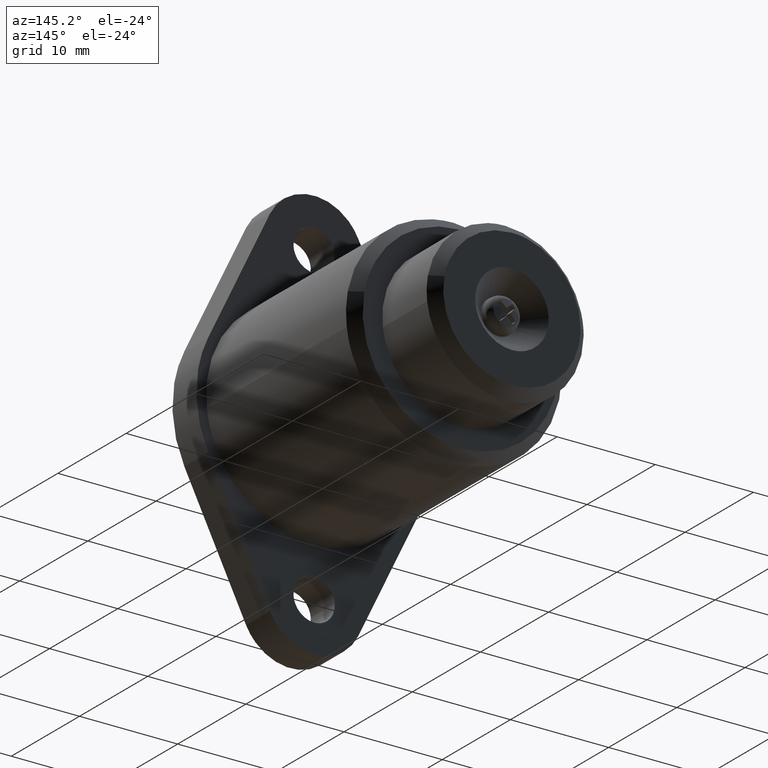
[diagram: clean part render]
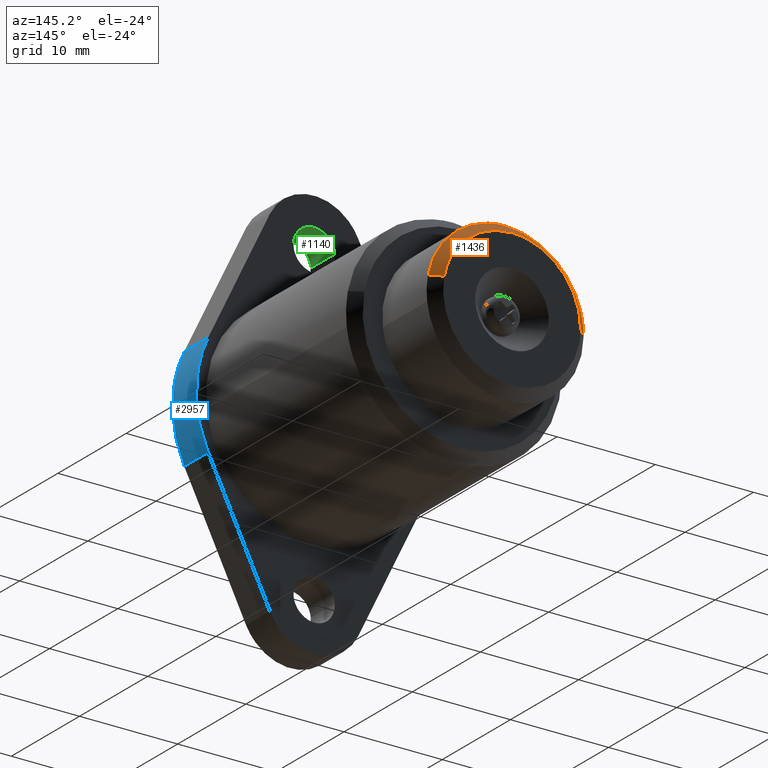
[diagram: same view with three faces highlighted in distinct colors, each labeled with its STEP entity id]
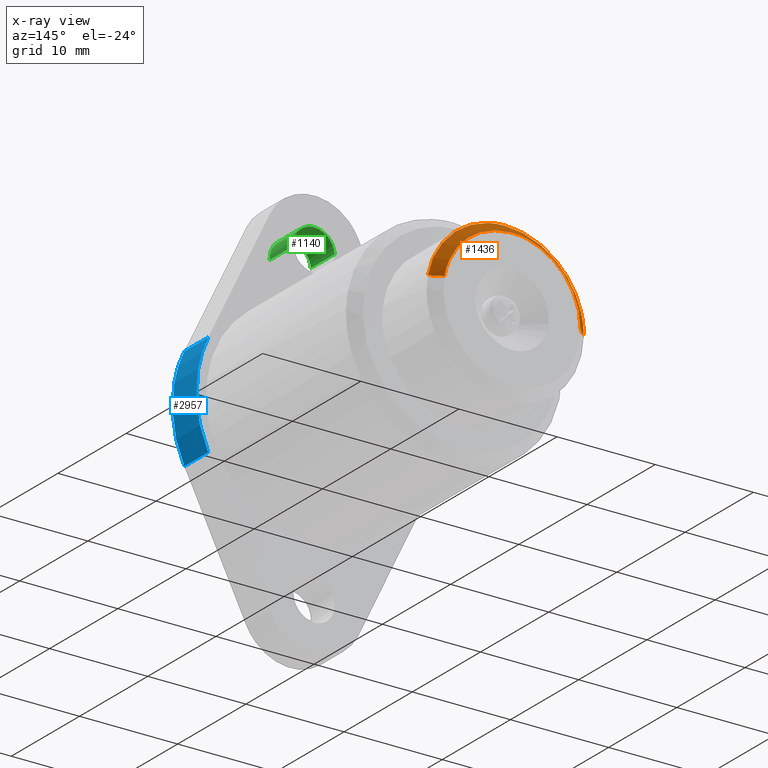
[diagram: x-ray of the same camera — body ghosted, the three highlighted faces saturated]
A machine part, auxiliary view with three faces highlighted in distinct colors.
The next image is the same camera in x-ray (body ghosted, the three faces saturated) — at least one of them is partly hidden behind the body in this view.
Their STEP definitions:

[orange] entity #1436 — the highlighted face is a freeform B-spline surface patch.
#1323=CARTESIAN_POINT('',(6.857033857603708,29.025000000000006,1.277297786195716));
#1324=CARTESIAN_POINT('',(5.786245243018901,29.024999999999999,7.025772026479550));
#1325=CARTESIAN_POINT('',(-0.060885726903348,29.024999999999999,6.974744887549790));
#1326=CARTESIAN_POINT('',(-7.035620140275936,29.025000000000006,6.913877302448632));
#1327=CARTESIAN_POINT('',(-6.974752555174778,29.024999999999999,-0.060857110923956));
#1328=CARTESIAN_POINT('',(7.889892675793798,27.974374999999998,1.469692048875209));
#1329=CARTESIAN_POINT('',(6.657814127417138,27.974374999999991,8.084043099008255));
#1330=CARTESIAN_POINT('',(-0.070054043261327,27.974374999999998,8.025329882969091));
#1331=CARTESIAN_POINT('',(-8.095373452053217,27.974375000000006,7.955293981509954));
#1332=CARTESIAN_POINT('',(-8.025337550594079,27.974374999999998,-0.070025427281935));
#1340=(BOUNDED_SURFACE()B_SPLINE_SURFACE(2,1,((#1323,#1328),(#1324,#1329),(#1325,#1330),(#1326,#1331),(#1327,#1332)),.UNSPECIFIED.,.F.,.F.,.U.)B_SPLINE_SURFACE_WITH_KNOTS((3,2,3),(2,2),(0.0,11.701615979752409,24.998906865834691),(0.0,1.0),.UNSPECIFIED.)GEOMETRIC_REPRESENTATION_ITEM()RATIONAL_B_SPLINE_SURFACE(((0.938140952186599,0.938140952186599),(0.742253967444162,0.742253967444162),(1.0,1.0),(0.707106781186548,0.707106781186548),(1.0,1.0)))REPRESENTATION_ITEM('')SURFACE());
#1341=CARTESIAN_POINT('',(7.864700997291186,27.999999999981160,1.464999506040496));
#1342=VERTEX_POINT('',#1341);
#1343=CARTESIAN_POINT('',(-0.000018141802190,28.0,8.000010474177202));
#1344=VERTEX_POINT('',#1343);
#1345=CARTESIAN_POINT('',(7.864700997291186,27.999999999981160,1.464999506040496));
#1346=CARTESIAN_POINT('',(6.647401406129641,28.000000000000004,8.000010474177202));
#1347=CARTESIAN_POINT('',(-0.000018141802190,28.0,8.000010474177202));
#1355=(BOUNDED_CURVE()B_SPLINE_CURVE(2,(#1345,#1346,#1347),.UNSPECIFIED.,.F.,.U.)B_SPLINE_CURVE_WITH_KNOTS((3,3),(0.281445263719690,0.500000000000000),.UNSPECIFIED.)CURVE()GEOMETRIC_REPRESENTATION_ITEM()RATIONAL_B_SPLINE_CURVE((0.935586817225390,0.743947199215739,1.0))REPRESENTATION_ITEM(''));
#1356=EDGE_CURVE('',#1342,#1344,#1355,.T.);
#1357=ORIENTED_EDGE('',*,*,#1356,.F.);
#1358=CARTESIAN_POINT('',(6.881611104913361,28.999999999999901,1.281875876920605));
#1359=VERTEX_POINT('',#1358);
#1360=CARTESIAN_POINT('',(6.881611104913361,28.999999999999901,1.281875876920605));
#1361=CARTESIAN_POINT('',(7.864700997291186,27.999999999981160,1.464999506040496));
#1362=QUASI_UNIFORM_CURVE('',1,(#1360,#1361),.UNSPECIFIED.,.F.,.U.);
#1363=EDGE_CURVE('',#1359,#1342,#1362,.T.);
#1364=ORIENTED_EDGE('',*,*,#1363,.F.);
#1365=CARTESIAN_POINT('',(-0.000018141802190,29.0,7.000010474177202));
#1366=VERTEX_POINT('',#1365);
#1367=CARTESIAN_POINT('',(-0.000018141802190,29.0,7.000010474177202));
#1368=CARTESIAN_POINT('',(5.816473962868499,28.999999999999996,7.000010474177201));
#1369=CARTESIAN_POINT('',(6.881611104913361,28.999999999999901,1.281875876920605));
#1377=(BOUNDED_CURVE()B_SPLINE_CURVE(2,(#1367,#1368,#1369),.UNSPECIFIED.,.F.,.U.)B_SPLINE_CURVE_WITH_KNOTS((3,3),(0.500000000000000,0.718554736286749),.UNSPECIFIED.)CURVE()GEOMETRIC_REPRESENTATION_ITEM()RATIONAL_B_SPLINE_CURVE((1.0,0.743947199208195,0.935586817236681))REPRESENTATION_ITEM(''));
#1378=EDGE_CURVE('',#1366,#1359,#1377,.T.);
#1379=ORIENTED_EDGE('',*,*,#1378,.F.);
#1380=CARTESIAN_POINT('',(-6.999751603255109,28.999999999996021,-0.061075274340515));
#1381=VERTEX_POINT('',#1380);
#1382=CARTESIAN_POINT('',(-6.999751603255109,28.999999999996025,-0.061075274340515));
#1383=CARTESIAN_POINT('',(-7.000018141802192,28.999999999999996,-0.030532981596775));
#1384=CARTESIAN_POINT('',(-7.000018141802191,29.0,0.000010474177202));
#1385=CARTESIAN_POINT('',(-7.000018141802192,29.000000000000007,7.000010474177201));
#1386=CARTESIAN_POINT('',(-0.000018141802190,29.0,7.000010474177202));
#1394=(BOUNDED_CURVE()B_SPLINE_CURVE(2,(#1382,#1383,#1384,#1385,#1386),.UNSPECIFIED.,.F.,.U.)B_SPLINE_CURVE_WITH_KNOTS((3,2,3),(0.248460105663550,0.250000000000000,0.500000000000000),.UNSPECIFIED.)CURVE()GEOMETRIC_REPRESENTATION_ITEM()RATIONAL_B_SPLINE_CURVE((0.996414028097020,0.998195901564658,1.0,0.707106781186547,1.0))REPRESENTATION_ITEM(''));
#1395=EDGE_CURVE('',#1381,#1366,#1394,.T.);
#1396=ORIENTED_EDGE('',*,*,#1395,.F.);
#1397=CARTESIAN_POINT('',(-7.999713526325029,27.999999999989878,-0.069801809883882));
#1398=VERTEX_POINT('',#1397);
#1399=CARTESIAN_POINT('',(-6.999751603255109,28.999999999996021,-0.061075274340515));
#1400=CARTESIAN_POINT('',(-7.999713526325029,27.999999999989878,-0.069801809883882));
#1401=QUASI_UNIFORM_CURVE('',1,(#1399,#1400),.UNSPECIFIED.,.F.,.U.);
#1402=EDGE_CURVE('',#1381,#1398,#1401,.T.);
#1403=ORIENTED_EDGE('',*,*,#1402,.T.);
#1404=CARTESIAN_POINT('',(-7.985096529174710,28.0,0.488398790495545));
#1405=VERTEX_POINT('',#1404);
#1406=CARTESIAN_POINT('',(-7.985096529174710,28.0,0.488398790495545));
#1407=CARTESIAN_POINT('',(-8.000018141802190,27.999999999999996,0.244432580605510));
#1408=CARTESIAN_POINT('',(-8.000018141802190,28.0,0.000010474177202));
#1409=CARTESIAN_POINT('',(-8.000018141802190,27.999999999999996,-0.034896332462424));
#1410=CARTESIAN_POINT('',(-7.999713526325029,27.999999999989878,-0.069801809883882));
#1418=(BOUNDED_CURVE()B_SPLINE_CURVE(2,(#1406,#1407,#1408,#1409,#1410),.UNSPECIFIED.,.F.,.U.)B_SPLINE_CURVE_WITH_KNOTS((3,2,3),(0.739332962240262,0.750000000000000,0.751539894338246),.UNSPECIFIED.)CURVE()GEOMETRIC_REPRESENTATION_ITEM()RATIONAL_B_SPLINE_CURVE((0.976072041669544,0.987502787901383,1.0,0.998195901562554,0.996414028092863))REPRESENTATION_ITEM(''));
#1419=EDGE_CURVE('',#1405,#1398,#1418,.T.);
#1420=ORIENTED_EDGE('',*,*,#1419,.F.);
#1421=CARTESIAN_POINT('',(-0.000018141802190,28.0,8.000010474177202));
#1422=CARTESIAN_POINT('',(-7.525666676973182,27.999999999999996,8.000010474177202));
#1423=CARTESIAN_POINT('',(-7.985096529174710,28.0,0.488398790495545));
#1431=(BOUNDED_CURVE()B_SPLINE_CURVE(2,(#1421,#1422,#1423),.UNSPECIFIED.,.F.,.U.)B_SPLINE_CURVE_WITH_KNOTS((3,3),(0.500000000000000,0.739332962240262),.UNSPECIFIED.)CURVE()GEOMETRIC_REPRESENTATION_ITEM()RATIONAL_B_SPLINE_CURVE((1.0,0.719603993285165,0.976072041669544))REPRESENTATION_ITEM(''));
#1432=EDGE_CURVE('',#1344,#1405,#1431,.T.);
#1433=ORIENTED_EDGE('',*,*,#1432,.F.);
#1434=EDGE_LOOP('',(#1357,#1364,#1379,#1396,#1403,#1420,#1433));
#1435=FACE_OUTER_BOUND('',#1434,.T.);
#1436=ADVANCED_FACE('',(#1435),#1340,.T.);

[blue] entity #2957 — the highlighted face is a freeform B-spline surface patch.
#2800=CARTESIAN_POINT('',(10.787798958201421,0.0,5.255806668611340));
#2801=VERTEX_POINT('',#2800);
#2809=CARTESIAN_POINT('',(10.787798958201421,0.0,-5.255785720256941));
#2810=VERTEX_POINT('',#2809);
#2811=CARTESIAN_POINT('',(10.787798958201421,0.0,-5.255785720256941));
#2812=CARTESIAN_POINT('',(13.348413384226454,0.0,0.000010474177197));
#2813=CARTESIAN_POINT('',(10.787798958201421,0.0,5.255806668611339));
#2821=(BOUNDED_CURVE()B_SPLINE_CURVE(2,(#2811,#2812,#2813),.UNSPECIFIED.,.F.,.U.)CURVE()GEOMETRIC_REPRESENTATION_ITEM()QUASI_UNIFORM_CURVE()RATIONAL_B_SPLINE_CURVE((1.0,0.898983246516785,1.0))REPRESENTATION_ITEM(''));
#2822=EDGE_CURVE('',#2810,#2801,#2821,.T.);
#2913=CARTESIAN_POINT('',(10.548904755239604,-3.587499999999951,-5.720182570194914));
#2914=CARTESIAN_POINT('',(10.548904755239604,0.089687499999999,-5.720182570194914));
#2915=CARTESIAN_POINT('',(13.650739666797300,-3.587499999999949,0.000072112589288));
#2916=CARTESIAN_POINT('',(13.650739666797300,0.089687499999999,0.000072112589288));
#2917=CARTESIAN_POINT('',(10.548853097005603,-3.587499999999950,5.720298783152140));
#2918=CARTESIAN_POINT('',(10.548853097005603,0.089687499999999,5.720298783152140));
#2926=(BOUNDED_SURFACE()B_SPLINE_SURFACE(1,2,((#2913,#2915,#2917),(#2914,#2916,#2918)),.UNSPECIFIED.,.F.,.F.,.U.)B_SPLINE_SURFACE_WITH_KNOTS((2,2),(3,3),(0.0,3.677187499999949),(0.0,12.176727389553861),.UNSPECIFIED.)GEOMETRIC_REPRESENTATION_ITEM()RATIONAL_B_SPLINE_SURFACE(((0.999972124135799,0.878953462548062,0.999755370377348),(0.999972124135799,0.878953462548062,0.999755370377348)))REPRESENTATION_ITEM('')SURFACE());
#2927=ORIENTED_EDGE('',*,*,#2822,.T.);
#2928=CARTESIAN_POINT('',(10.787798958201421,-3.499999999999950,5.255806668611340));
#2929=VERTEX_POINT('',#2928);
#2930=CARTESIAN_POINT('',(10.787798958201421,-3.499999999999950,5.255806668611340));
#2931=CARTESIAN_POINT('',(10.787798958201421,0.0,5.255806668611340));
#2932=QUASI_UNIFORM_CURVE('',1,(#2930,#2931),.UNSPECIFIED.,.F.,.U.);
#2933=EDGE_CURVE('',#2929,#2801,#2932,.T.);
#2934=ORIENTED_EDGE('',*,*,#2933,.F.);
#2935=CARTESIAN_POINT('',(10.787798958201421,-3.499999999999950,-5.255785720256941));
#2936=VERTEX_POINT('',#2935);
#2937=CARTESIAN_POINT('',(10.787798958201421,-3.499999999999950,-5.255785720256941));
#2938=CARTESIAN_POINT('',(13.348413384226454,-3.499999999999951,0.000010474177197));
#2939=CARTESIAN_POINT('',(10.787798958201421,-3.499999999999950,5.255806668611339));
#2947=(BOUNDED_CURVE()B_SPLINE_CURVE(2,(#2937,#2938,#2939),.UNSPECIFIED.,.F.,.U.)CURVE()GEOMETRIC_REPRESENTATION_ITEM()QUASI_UNIFORM_CURVE()RATIONAL_B_SPLINE_CURVE((1.0,0.898983246516785,1.0))REPRESENTATION_ITEM(''));
#2948=EDGE_CURVE('',#2936,#2929,#2947,.T.);
#2949=ORIENTED_EDGE('',*,*,#2948,.F.);
#2950=CARTESIAN_POINT('',(10.787798958201421,-3.499999999999950,-5.255785720256941));
#2951=CARTESIAN_POINT('',(10.787798958201421,0.0,-5.255785720256941));
#2952=QUASI_UNIFORM_CURVE('',1,(#2950,#2951),.UNSPECIFIED.,.F.,.U.);
#2953=EDGE_CURVE('',#2936,#2810,#2952,.T.);
#2954=ORIENTED_EDGE('',*,*,#2953,.T.);
#2955=EDGE_LOOP('',(#2927,#2934,#2949,#2954));
#2956=FACE_OUTER_BOUND('',#2955,.T.);
#2957=ADVANCED_FACE('',(#2956),#2926,.T.);

[green] entity #1140 — the highlighted face is a freeform B-spline surface patch.
#979=CARTESIAN_POINT('',(2.093526400831510,1.942890E-016,15.835246373046340));
#980=VERTEX_POINT('',#979);
#994=CARTESIAN_POINT('',(-2.093526400831510,1.942890E-016,16.164774575308059));
#995=VERTEX_POINT('',#994);
#1011=CARTESIAN_POINT('',(-2.093526400831511,-3.499999999999950,16.164774575308059));
#1012=VERTEX_POINT('',#1011);
#1013=CARTESIAN_POINT('',(-2.093526400831511,-3.499999999999950,16.164774575308059));
#1014=CARTESIAN_POINT('',(-2.093526400831510,1.942890E-016,16.164774575308059));
#1015=QUASI_UNIFORM_CURVE('',1,(#1013,#1014),.UNSPECIFIED.,.F.,.U.);
#1016=EDGE_CURVE('',#1012,#995,#1015,.T.);
#1035=CARTESIAN_POINT('',(2.093526400831510,-3.499999999999950,15.835246373046340));
#1036=VERTEX_POINT('',#1035);
#1050=CARTESIAN_POINT('',(2.093526400831510,-3.499999999999950,15.835246373046340));
#1051=CARTESIAN_POINT('',(2.093526400831510,1.942890E-016,15.835246373046340));
#1052=QUASI_UNIFORM_CURVE('',1,(#1050,#1051),.UNSPECIFIED.,.F.,.U.);
#1053=EDGE_CURVE('',#1036,#980,#1052,.T.);
#1058=CARTESIAN_POINT('',(-2.093526400839568,-3.587499999999950,16.164774575205669));
#1059=CARTESIAN_POINT('',(-1.928762299811092,-3.587499999999950,18.258300976045241));
#1060=CARTESIAN_POINT('',(0.164764101028476,-3.587499999999950,18.093536875016770));
#1061=CARTESIAN_POINT('',(2.258290501868045,-3.587499999999950,17.928772773988292));
#1062=CARTESIAN_POINT('',(2.093526400839568,-3.587499999999950,15.835246373148721));
#1063=CARTESIAN_POINT('',(-2.093526400839568,0.089687499999999,16.164774575205669));
#1064=CARTESIAN_POINT('',(-1.928762299811092,0.089687499999999,18.258300976045241));
#1065=CARTESIAN_POINT('',(0.164764101028476,0.089687499999999,18.093536875016770));
#1066=CARTESIAN_POINT('',(2.258290501868045,0.089687499999999,17.928772773988292));
#1067=CARTESIAN_POINT('',(2.093526400839568,0.089687499999999,15.835246373148721));
#1075=(BOUNDED_SURFACE()B_SPLINE_SURFACE(2,1,((#1058,#1063),(#1059,#1064),(#1060,#1065),(#1061,#1066),(#1062,#1067)),.UNSPECIFIED.,.F.,.F.,.U.)B_SPLINE_SURFACE_WITH_KNOTS((3,2,3),(2,2),(0.0,3.479393923933999,6.958787847867998),(0.0,3.677187499999949),.UNSPECIFIED.)GEOMETRIC_REPRESENTATION_ITEM()RATIONAL_B_SPLINE_SURFACE(((1.0,1.0),(0.707106781186548,0.707106781186548),(1.0,1.0),(0.707106781186548,0.707106781186548),(1.0,1.0)))REPRESENTATION_ITEM('')SURFACE());
#1076=CARTESIAN_POINT('',(0.0,0.0,18.100010474177200));
#1077=VERTEX_POINT('',#1076);
#1078=CARTESIAN_POINT('',(2.093526400831511,1.942890E-016,15.835246373046337));
#1079=CARTESIAN_POINT('',(2.100000000000000,0.0,15.917501249358232));
#1080=CARTESIAN_POINT('',(2.100000000000000,0.0,16.000010474177198));
#1081=CARTESIAN_POINT('',(2.100000000000000,0.0,18.100010474177203));
#1082=CARTESIAN_POINT('',(0.0,0.0,18.100010474177200));
#1090=(BOUNDED_CURVE()B_SPLINE_CURVE(2,(#1078,#1079,#1080,#1081,#1082),.UNSPECIFIED.,.F.,.U.)B_SPLINE_CURVE_WITH_KNOTS((3,2,3),(0.236331300616000,0.250000000000000,0.500000000000000),.UNSPECIFIED.)CURVE()GEOMETRIC_REPRESENTATION_ITEM()RATIONAL_B_SPLINE_CURVE((0.969723356136824,0.983986122561707,1.0,0.707106781186548,1.0))REPRESENTATION_ITEM(''));
#1091=EDGE_CURVE('',#980,#1077,#1090,.T.);
#1092=ORIENTED_EDGE('',*,*,#1091,.F.);
#1093=ORIENTED_EDGE('',*,*,#1053,.F.);
#1094=CARTESIAN_POINT('',(0.0,-3.499999999999950,18.100010474177200));
#1095=VERTEX_POINT('',#1094);
#1096=CARTESIAN_POINT('',(2.093526400831511,-3.499999999999949,15.835246373046337));
#1097=CARTESIAN_POINT('',(2.100000000000000,-3.499999999999951,15.917501249358232));
#1098=CARTESIAN_POINT('',(2.100000000000000,-3.499999999999950,16.000010474177198));
#1099=CARTESIAN_POINT('',(2.100000000000000,-3.499999999999949,18.100010474177203));
#1100=CARTESIAN_POINT('',(0.0,-3.499999999999950,18.100010474177200));
#1108=(BOUNDED_CURVE()B_SPLINE_CURVE(2,(#1096,#1097,#1098,#1099,#1100),.UNSPECIFIED.,.F.,.U.)B_SPLINE_CURVE_WITH_KNOTS((3,2,3),(0.236331300616000,0.250000000000000,0.500000000000000),.UNSPECIFIED.)CURVE()GEOMETRIC_REPRESENTATION_ITEM()RATIONAL_B_SPLINE_CURVE((0.969723356136824,0.983986122561707,1.0,0.707106781186548,1.0))REPRESENTATION_ITEM(''));
#1109=EDGE_CURVE('',#1036,#1095,#1108,.T.);
#1110=ORIENTED_EDGE('',*,*,#1109,.T.);
#1111=CARTESIAN_POINT('',(0.0,-3.499999999999950,18.100010474177200));
#1112=CARTESIAN_POINT('',(-1.941220032291773,-3.499999999999950,18.100010474177203));
#1113=CARTESIAN_POINT('',(-2.093526400831511,-3.499999999999950,16.164774575308059));
#1121=(BOUNDED_CURVE()B_SPLINE_CURVE(2,(#1111,#1112,#1113),.UNSPECIFIED.,.F.,.U.)B_SPLINE_CURVE_WITH_KNOTS((3,3),(0.500000000000000,0.736331300616000),.UNSPECIFIED.)CURVE()GEOMETRIC_REPRESENTATION_ITEM()RATIONAL_B_SPLINE_CURVE((1.0,0.723120658624841,0.969723356136823))REPRESENTATION_ITEM(''));
#1122=EDGE_CURVE('',#1095,#1012,#1121,.T.);
#1123=ORIENTED_EDGE('',*,*,#1122,.T.);
#1124=ORIENTED_EDGE('',*,*,#1016,.T.);
#1125=CARTESIAN_POINT('',(0.0,0.0,18.100010474177200));
#1126=CARTESIAN_POINT('',(-1.941220032291773,0.0,18.100010474177203));
#1127=CARTESIAN_POINT('',(-2.093526400831511,1.942890E-016,16.164774575308059));
#1135=(BOUNDED_CURVE()B_SPLINE_CURVE(2,(#1125,#1126,#1127),.UNSPECIFIED.,.F.,.U.)B_SPLINE_CURVE_WITH_KNOTS((3,3),(0.500000000000000,0.736331300616000),.UNSPECIFIED.)CURVE()GEOMETRIC_REPRESENTATION_ITEM()RATIONAL_B_SPLINE_CURVE((1.0,0.723120658624841,0.969723356136823))REPRESENTATION_ITEM(''));
#1136=EDGE_CURVE('',#1077,#995,#1135,.T.);
#1137=ORIENTED_EDGE('',*,*,#1136,.F.);
#1138=EDGE_LOOP('',(#1092,#1093,#1110,#1123,#1124,#1137));
#1139=FACE_OUTER_BOUND('',#1138,.T.);
#1140=ADVANCED_FACE('',(#1139),#1075,.F.);